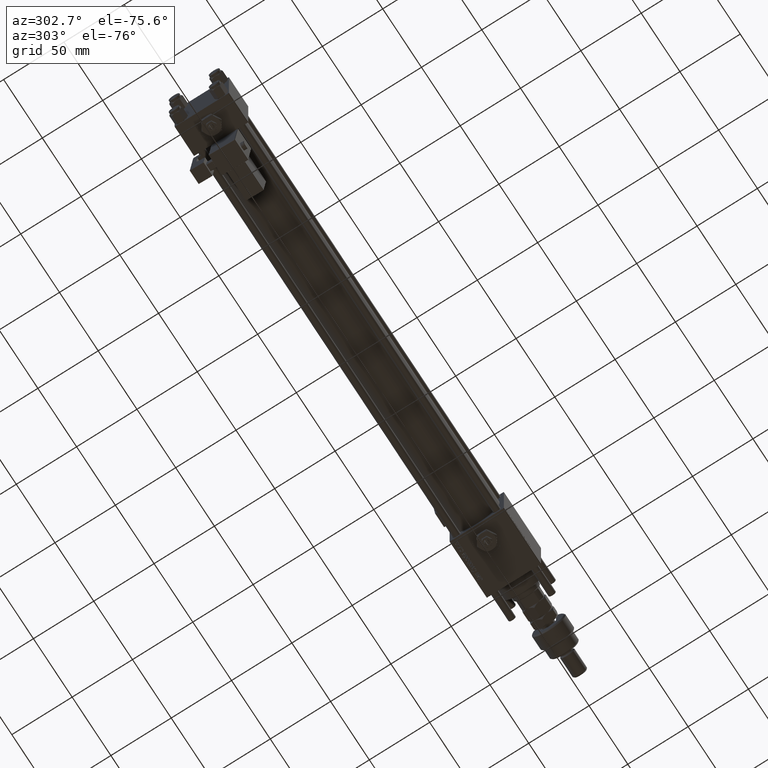
[diagram: clean part render]
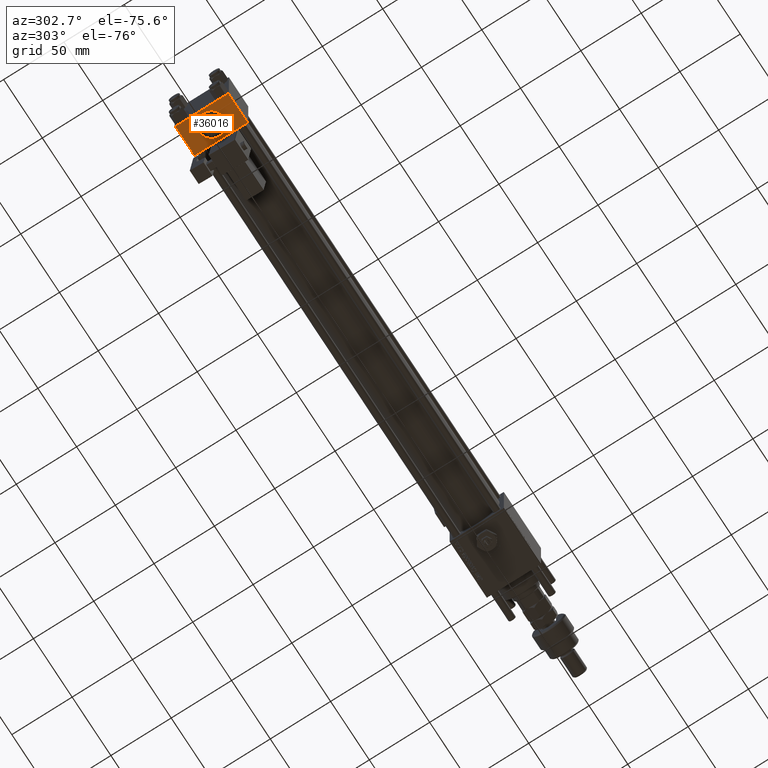
[diagram: same view with one face highlighted and labeled with its STEP entity id]
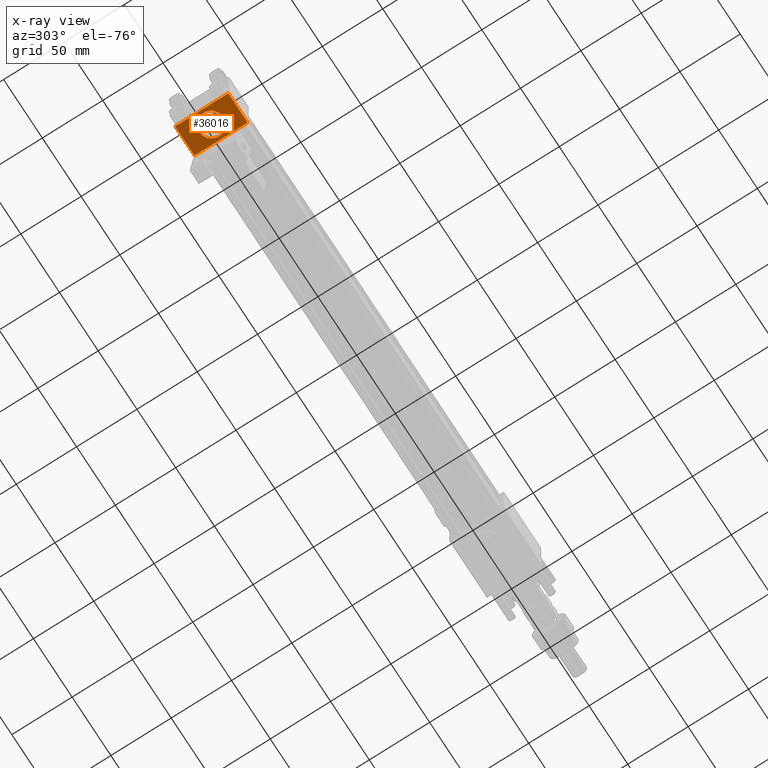
[diagram: x-ray of the same camera — body ghosted, the highlighted face saturated]
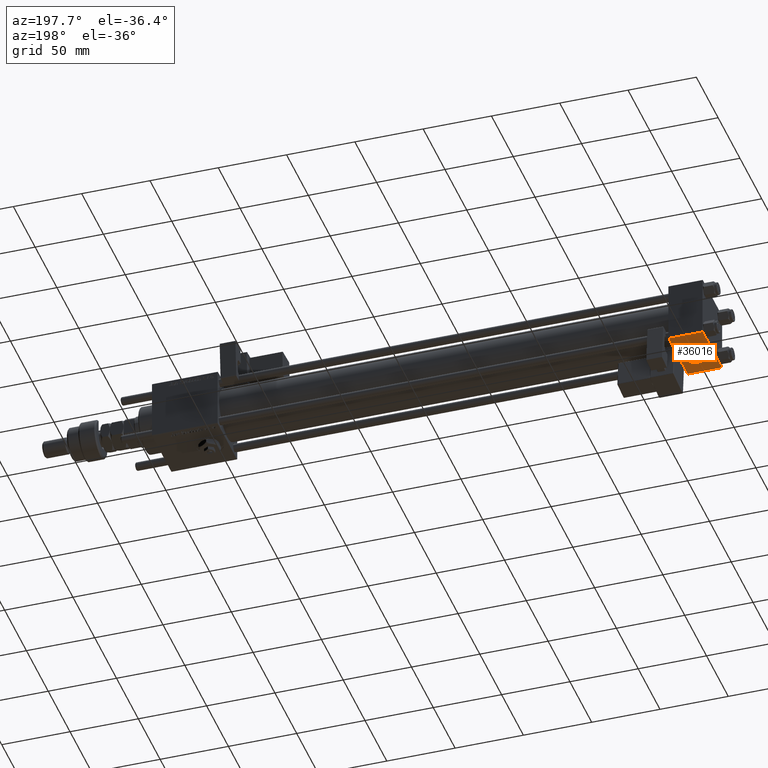
[diagram: same view with one face highlighted and labeled with its STEP entity id]
A machine part, auxiliary view. The second image highlights one B-rep face of the part: STEP entity #36016.
The next image is the same camera in x-ray: the body ghosted, the highlighted face saturated — about 0% of this face is hidden behind the body in this view.
A second angle (auxiliary view) of the same face is appended — the face is thin or edge-on in the first view.
In plain terms, the highlighted planar face has unit normal (0, 0, -1).
Its self-contained STEP definition (entity closure, byte-faithful):
#956 = VERTEX_POINT ( 'NONE', #32741 ) ;
#1858 = EDGE_LOOP ( 'NONE', ( #8250, #14322 ) ) ;
#3416 = EDGE_LOOP ( 'NONE', ( #50268, #31285, #8506, #12000 ) ) ;
#4679 = EDGE_CURVE ( 'NONE', #51238, #21325, #7670, .T. ) ;
#4917 = DIRECTION ( 'NONE',  ( 0.000000000000000000, 1.000000000000000000, 2.312964634635742957E-16 ) ) ;
#7670 = LINE ( 'NONE', #38353, #41925 ) ;
#7880 = CIRCLE ( 'NONE', #46106, 10.00000000000000178 ) ;
#8250 = ORIENTED_EDGE ( 'NONE', *, *, #42371, .F. ) ;
#8506 = ORIENTED_EDGE ( 'NONE', *, *, #4679, .T. ) ;
#8969 = DIRECTION ( 'NONE',  ( 1.000000000000000000, 0.000000000000000000, 0.000000000000000000 ) ) ;
#10713 = CARTESIAN_POINT ( 'NONE',  ( 12.50000000000000178, 3.566060716959379104E-15, -22.50000000000000000 ) ) ;
#11406 = LINE ( 'NONE', #22027, #36809 ) ;
#12000 = ORIENTED_EDGE ( 'NONE', *, *, #48638, .T. ) ;
#14322 = ORIENTED_EDGE ( 'NONE', *, *, #47678, .F. ) ;
#14693 = VERTEX_POINT ( 'NONE', #38117 ) ;
#14837 = DIRECTION ( 'NONE',  ( 0.000000000000000000, 1.000000000000000000, 0.000000000000000000 ) ) ;
#15448 = CARTESIAN_POINT ( 'NONE',  ( 0.000000000000000000, 21.99999999999999289, -22.49999999999999645 ) ) ;
#15583 = DIRECTION ( 'NONE',  ( 0.000000000000000000, 2.312964634635742957E-16, -1.000000000000000000 ) ) ;
#16581 = AXIS2_PLACEMENT_3D ( 'NONE', #54385, #15583, #4917 ) ;
#20091 = PLANE ( 'NONE',  #16581 ) ;
#20735 = FACE_BOUND ( 'NONE', #1858, .T. ) ;
#21325 = VERTEX_POINT ( 'NONE', #53584 ) ;
#22027 = CARTESIAN_POINT ( 'NONE',  ( 0.000000000000000000, -21.99999999999998579, -22.50000000000000711 ) ) ;
#24448 = EDGE_CURVE ( 'NONE', #63889, #51238, #52630, .T. ) ;
#24931 = CARTESIAN_POINT ( 'NONE',  ( 25.00000000000000000, 21.99999999999999289, -22.49999999999999645 ) ) ;
#25591 = FACE_OUTER_BOUND ( 'NONE', #3416, .T. ) ;
#25890 = DIRECTION ( 'NONE',  ( 0.000000000000000000, -1.734723475976806848E-16, -1.000000000000000000 ) ) ;
#27927 = VERTEX_POINT ( 'NONE', #54661 ) ;
#28655 = DIRECTION ( 'NONE',  ( 0.000000000000000000, -1.000000000000000000, -2.312964634635742957E-16 ) ) ;
#30415 = DIRECTION ( 'NONE',  ( 0.000000000000000000, 1.000000000000000000, 0.000000000000000000 ) ) ;
#31111 = DIRECTION ( 'NONE',  ( -1.000000000000000000, 0.000000000000000000, 0.000000000000000000 ) ) ;
#31285 = ORIENTED_EDGE ( 'NONE', *, *, #24448, .T. ) ;
#32300 = EDGE_CURVE ( 'NONE', #63889, #14693, #54633, .T. ) ;
#32741 = CARTESIAN_POINT ( 'NONE',  ( 12.50000000000000355, -9.999999999999998224, -22.50000000000000000 ) ) ;
#33960 = VECTOR ( 'NONE', #54306, 1000.000000000000000 ) ;
#34692 = CIRCLE ( 'NONE', #50154, 10.00000000000000178 ) ;
#36016 = ADVANCED_FACE ( 'NONE', ( #20735, #25591 ), #20091, .T. ) ;
#36809 = VECTOR ( 'NONE', #31111, 1000.000000000000000 ) ;
#38117 = CARTESIAN_POINT ( 'NONE',  ( 0.000000000000000000, -21.99999999999997158, -22.50000000000000711 ) ) ;
#38353 = CARTESIAN_POINT ( 'NONE',  ( 25.00000000000000000, 22.50000000000000000, -22.49999999999999645 ) ) ;
#39398 = DIRECTION ( 'NONE',  ( 0.000000000000000000, -1.734723475976806848E-16, -1.000000000000000000 ) ) ;
#40078 = CARTESIAN_POINT ( 'NONE',  ( 0.000000000000000000, 22.50000000000000000, -22.49999999999999645 ) ) ;
#41925 = VECTOR ( 'NONE', #28655, 1000.000000000000000 ) ;
#42371 = EDGE_CURVE ( 'NONE', #27927, #956, #34692, .T. ) ;
#46106 = AXIS2_PLACEMENT_3D ( 'NONE', #63971, #39398, #14837 ) ;
#47678 = EDGE_CURVE ( 'NONE', #956, #27927, #7880, .T. ) ;
#48638 = EDGE_CURVE ( 'NONE', #21325, #14693, #11406, .T. ) ;
#50154 = AXIS2_PLACEMENT_3D ( 'NONE', #10713, #25890, #30415 ) ;
#50268 = ORIENTED_EDGE ( 'NONE', *, *, #32300, .F. ) ;
#51238 = VERTEX_POINT ( 'NONE', #24931 ) ;
#52630 = LINE ( 'NONE', #53263, #61468 ) ;
#53263 = CARTESIAN_POINT ( 'NONE',  ( 25.00000000000000000, 21.99999999999999289, -22.49999999999999645 ) ) ;
#53584 = CARTESIAN_POINT ( 'NONE',  ( 25.00000000000000000, -21.99999999999997158, -22.50000000000000711 ) ) ;
#54306 = DIRECTION ( 'NONE',  ( 0.000000000000000000, -1.000000000000000000, -2.312964634635742957E-16 ) ) ;
#54385 = CARTESIAN_POINT ( 'NONE',  ( 25.00000000000000000, 22.50000000000000000, -22.49999999999999645 ) ) ;
#54633 = LINE ( 'NONE', #40078, #33960 ) ;
#54661 = CARTESIAN_POINT ( 'NONE',  ( 12.50000000000000178, 10.00000000000000533, -22.50000000000000000 ) ) ;
#61468 = VECTOR ( 'NONE', #8969, 1000.000000000000000 ) ;
#63889 = VERTEX_POINT ( 'NONE', #15448 ) ;
#63971 = CARTESIAN_POINT ( 'NONE',  ( 12.50000000000000178, 3.566060716959379104E-15, -22.50000000000000000 ) ) ;